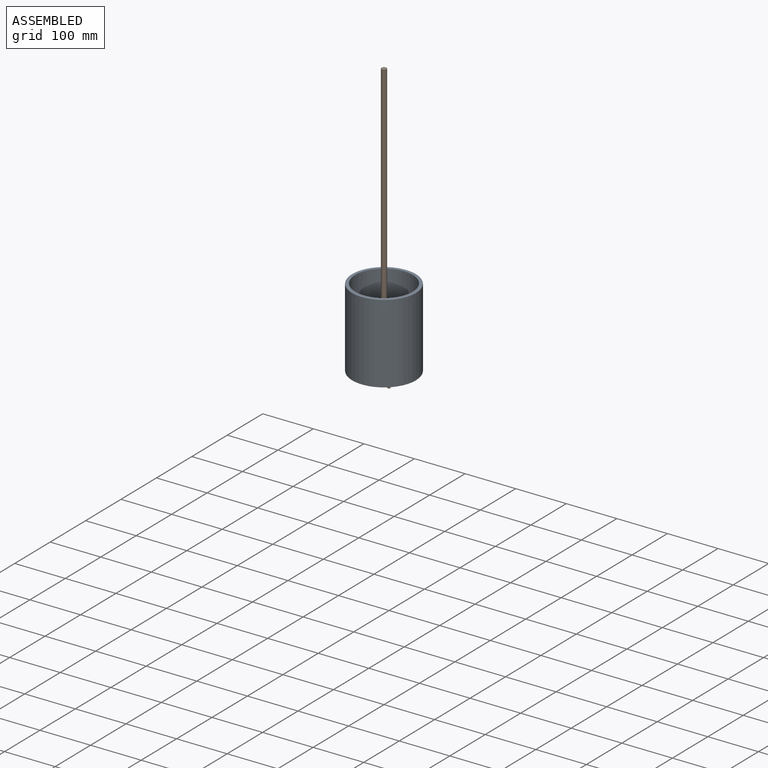
[diagram: assembled view]
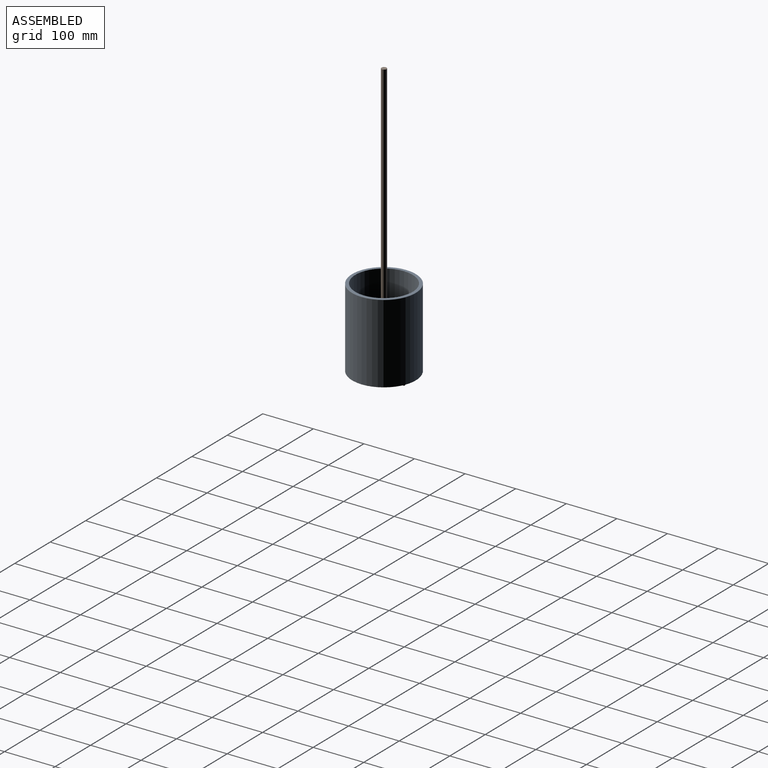
[diagram: assembled view, second angle]
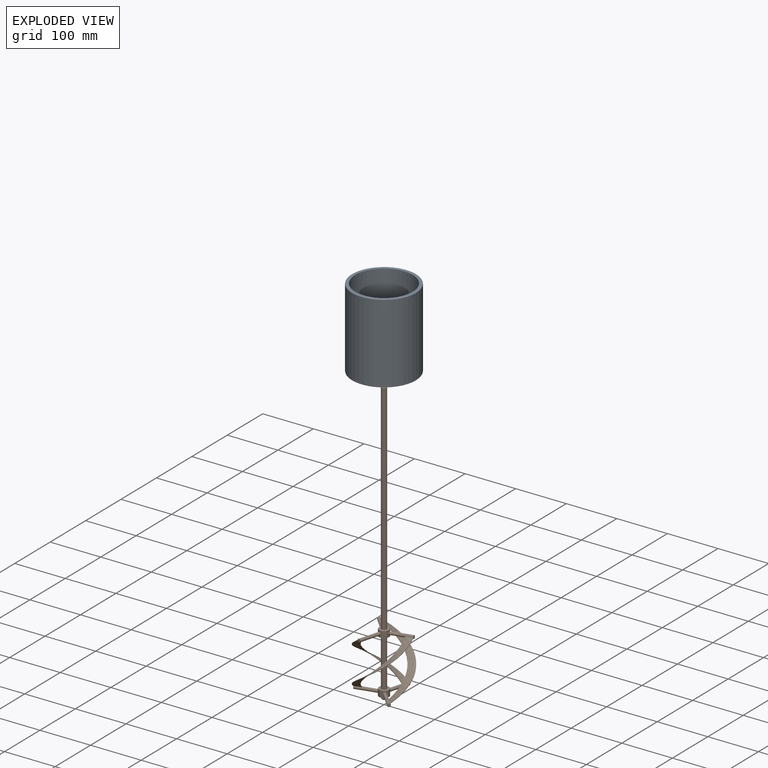
[diagram: exploded view]
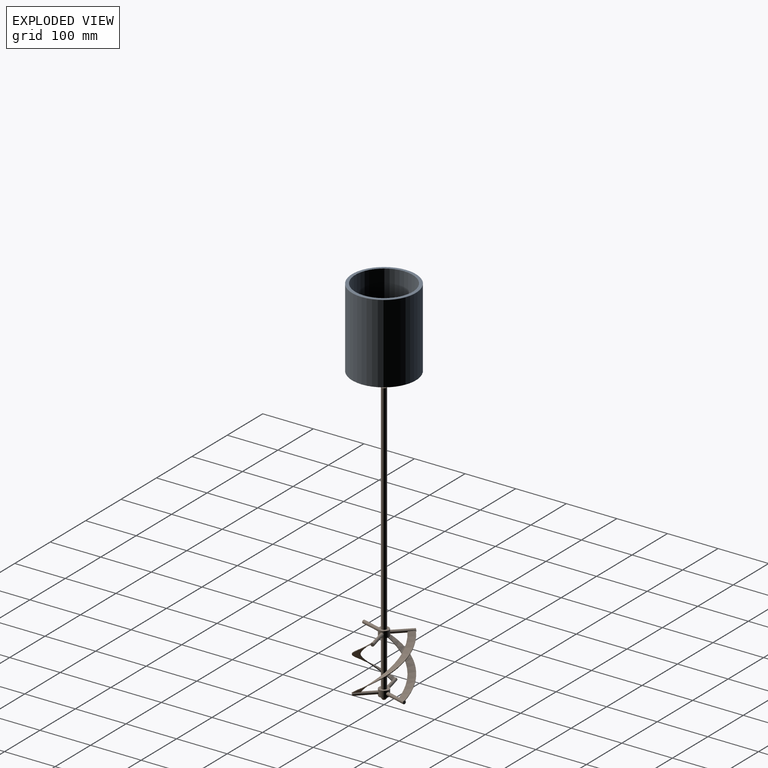
[diagram: exploded view, second angle]
ASSEMBLY  parts=2 mates=2
PART A: 8 faces, bbox 136.6x136.6x156.7 mm
  f0: plane 124.97x124.97mm, normal (0,0,-1), area 12265.6mm2, adj f5
  f1: cylinder r=63.12mm len=155.45mm, axis (0,0,1), area 61648.9mm2, adj f5,f6
  f2: plane 124.97x124.97mm, normal (0,0,1), area 2141.1mm2, adj f3,f6
  f3: cylinder r=56.77mm len=149.73mm, axis (0,0,1), area 53408.3mm2, adj f2,f7
  f4: plane 112.27x112.27mm, normal (0,0,1), area 9899.2mm2, adj f7
  f5: torus R=62.48mm, axis (0,0,1), area 394.1mm2, adj f0,f1
  f6: torus R=62.48mm, axis (0,0,-1), area 394.1mm2, adj f1,f2
  f7: torus R=56.13mm, axis (0,0,-1), area 354.3mm2, adj f3,f4
PART B: 35 faces, bbox 558.8x105.4x105.1 mm
  f0: cylinder r=9.96mm len=19.93mm, axis (-1,0,0), area 698.9mm2, adj f2,f3,f11,f23,f27
  f1: cylinder r=5.08mm len=10.16mm, axis (-1,0,0), area 81.1mm2, adj f2,f10
  f2: plane 19.93x19.93mm, normal (1,0,0), area 230.8mm2, adj f0,f1
  f3: plane 19.93x19.93mm, normal (-1,0,0), area 230.8mm2, adj f0,f4
  f4: cylinder r=5.08mm len=93.98mm, axis (-1,0,0), area 2999.7mm2, adj f3,f5
  f5: plane 19.93x19.93mm, normal (1,0,0), area 230.8mm2, adj f4,f6
  f6: cylinder r=9.96mm len=19.93mm, axis (-1,0,0), area 699mm2, adj f5,f7,f18,f26,f33
  f7: plane 19.93x19.93mm, normal (-1,0,0), area 230.8mm2, adj f6,f8
  f8: cylinder r=5.08mm len=431.8mm, axis (-1,0,0), area 13782.4mm2, adj f7,f9
  f9: plane 10.16x10.16mm, normal (-1,0,0), area 81.1mm2, adj f8
  f10: sphere r=5.08mm, area 162.1mm2, adj f1
  f11: cylinder r=3.17mm len=42.88mm, axis (0,1,0), area 831.6mm2, adj f0,f12,f14,f15,f16,f17
  f12: plane 6.35x6.35mm, normal (0,-1,0), area 31.7mm2, adj f11
  f13: plane 6.35x6.35mm, normal (0,1,0), area 31.7mm2, adj f18
  f14: bspline ~106.68x104.45mm, area 200.2mm2, adj f11,f15,f17,f18
  f15: bspline ~106.68x104.14mm, area 2394.7mm2, adj f11,f14,f16,f18
  f16: bspline ~106.68x76.51mm, area 199mm2, adj f11,f15,f17,f18
  f17: bspline ~106.68x104.45mm, area 2413.1mm2, adj f11,f14,f16,f18
  f18: cylinder r=3.17mm len=42.88mm, axis (0,-1,0), area 831.6mm2, adj f6,f13,f14,f15,f16,f17
  f19: plane 6.35x5.5mm, normal (0,0.5,-0.87), area 31.7mm2, adj f23
  f20: bspline ~106.68x71.52mm, area 199mm2, adj f21,f23,f24,f26
  f21: bspline ~106.68x97.74mm, area 2394.7mm2, adj f20,f22,f23,f26
  f22: bspline ~106.68x97.74mm, area 200.2mm2, adj f21,f23,f24,f26
  f23: cylinder r=3.17mm len=40.31mm, axis (0,-0.5,0.87), area 831.6mm2, adj f0,f19,f20,f21,f22,f24
  f24: bspline ~106.68x96.67mm, area 2413.1mm2, adj f20,f22,f23,f26
  f25: plane 6.35x5.5mm, normal (0,-0.5,0.87), area 31.7mm2, adj f26
  f26: cylinder r=3.17mm len=40.31mm, axis (0,0.5,-0.87), area 831.6mm2, adj f6,f20,f21,f22,f24,f25
  f27: cylinder r=3.17mm len=40.31mm, axis (0,-0.5,-0.87), area 831.6mm2, adj f0,f28,f29,f30,f31,f32
  f28: plane 6.35x5.5mm, normal (0,0.5,0.87), area 31.7mm2, adj f27
  f29: bspline ~106.68x98.81mm, area 2413.1mm2, adj f27,f30,f32,f33
  f30: bspline ~106.68x72.59mm, area 199mm2, adj f27,f29,f31,f33
  f31: bspline ~106.68x97.74mm, area 2394.7mm2, adj f27,f30,f32,f33
  f32: bspline ~106.68x98.81mm, area 200.2mm2, adj f27,f29,f31,f33
  f33: cylinder r=3.17mm len=40.31mm, axis (0,0.5,0.87), area 831.6mm2, adj f6,f29,f30,f31,f32,f34
  f34: plane 6.35x5.5mm, normal (0,-0.5,-0.87), area 31.7mm2, adj f33
PLACE A t=(0,0,-6.35)mm fixed
PLACE B rot(axis=(0.52,0.67,-0.52),112.3deg) t=(0,0,102.64)mm
MATE parallel A.f1 <-> B.f0  axis (0,0,1) through (0,0,0)mm
MATE cylindrical A.f1 <-> B.f0  axis (0,0,1) through (0,0,75.5)mm
